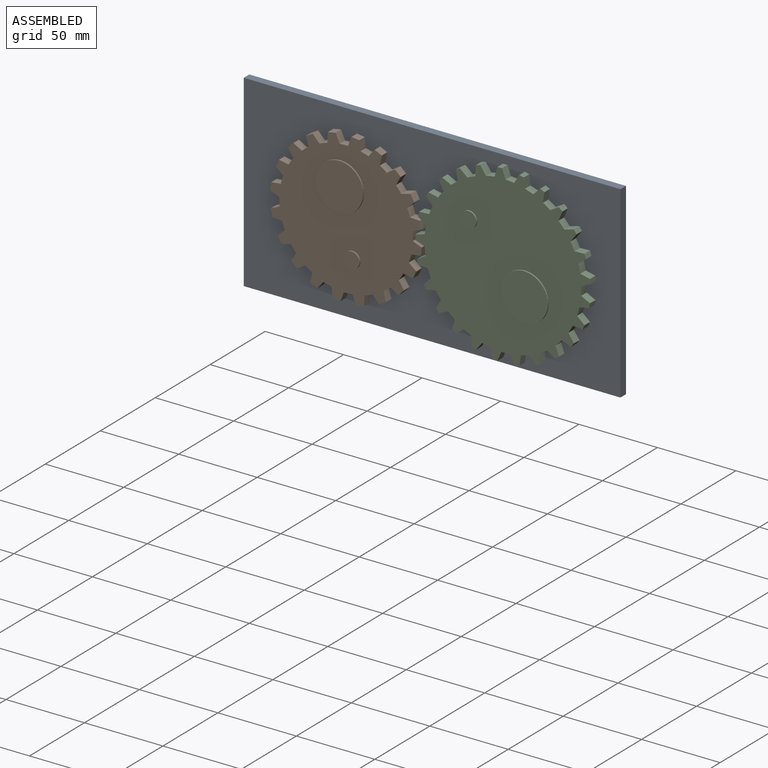
[diagram: assembled view]
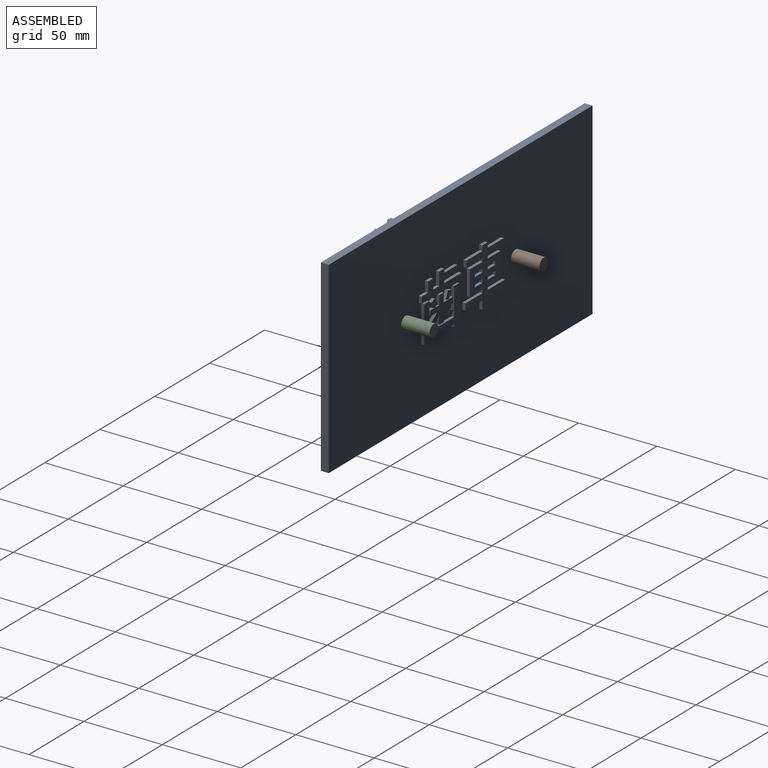
[diagram: assembled view, second angle]
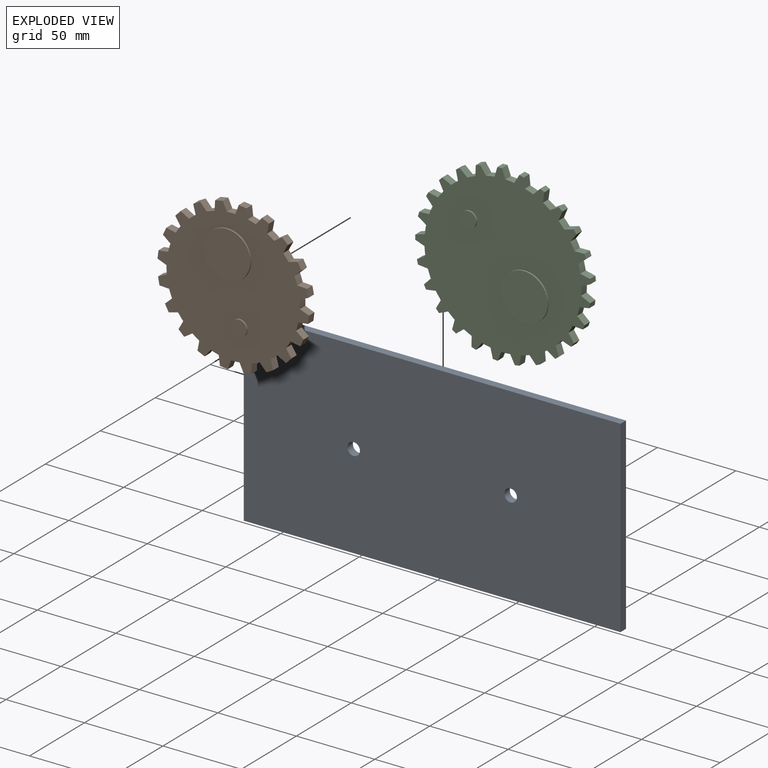
[diagram: exploded view]
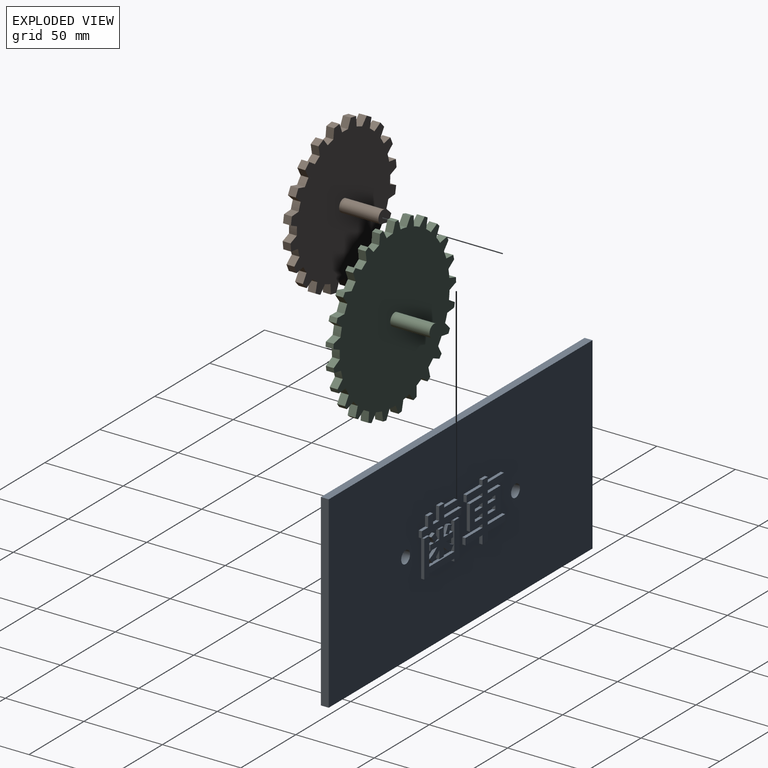
[diagram: exploded view, second angle]
ASSEMBLY  parts=3 mates=2
PART A: 116 faces, bbox 240x7x120 mm
  f0: plane 240x120mm, normal (0,1,0), area 27099.5mm2, adj f2,f3,f4,f5,f6,f7,f8,f9
  f1: plane 240x120mm, normal (0,-1,0), area 28699.5mm2, adj f2,f3,f4,f5,f6,f7
  f2: plane 120x5mm, normal (1,0,0), area 600mm2, adj f0,f1,f3,f5
  f3: plane 240x5mm, normal (0,0,1), area 1200mm2, adj f0,f1,f2,f4
  f4: plane 120x5mm, normal (-1,0,0), area 600mm2, adj f0,f1,f3,f5
  f5: plane 240x5mm, normal (0,0,-1), area 1200mm2, adj f0,f1,f2,f4
  f6: cylinder r=4mm len=8mm, axis (0,-1,0), area 125.7mm2, adj f0,f1
  f7: cylinder r=4mm len=8mm, axis (0,-1,0), area 125.7mm2, adj f0,f1
  f8: plane 17.81x2mm, normal (1,0,0), area 35.6mm2, adj f0,f9,f19,f20
  f9: plane 22.78x2mm, normal (0,0,1), area 45.6mm2, adj f0,f8,f10,f20
  f10: plane 17.81x2mm, normal (-1,0,0), area 35.6mm2, adj f0,f9,f11,f20
  f11: plane 4.49x2mm, normal (0,0,1), area 9mm2, adj f0,f10,f12,f20
  f12: plane 23.49x2mm, normal (1,0,0), area 47mm2, adj f0,f11,f13,f20
  f13: plane 4.49x2mm, normal (0,0,-1), area 9mm2, adj f0,f12,f14,f20
  f14: plane 2x1.63mm, normal (-1,0,0), area 3.3mm2, adj f0,f13,f15,f20
  f15: plane 22.78x2mm, normal (0,0,-1), area 45.6mm2, adj f0,f14,f16,f20
  f16: plane 2x1.63mm, normal (1,0,0), area 3.3mm2, adj f0,f15,f17,f20
  f17: plane 4.61x2mm, normal (0,0,-1), area 9.2mm2, adj f0,f16,f18,f20
  f18: plane 23.49x2mm, normal (-1,0,0), area 47mm2, adj f0,f17,f19,f20
  f19: plane 4.61x2mm, normal (0,0,1), area 9.2mm2, adj f0,f8,f18,f20
  f20: plane 31.88x23.49mm, normal (0,1,0), area 306.1mm2, adj f8,f9,f10,f11,f12,f13,f14,f15
  f21: plane 5.33x2mm, normal (1,0,0), area 10.7mm2, adj f0,f22,f48,f49
  f22: plane 4.01x2mm, normal (0,0,-1), area 8mm2, adj f0,f21,f23,f49
  f23: plane 5.33x2mm, normal (-1,0,0), area 10.7mm2, adj f0,f22,f24,f49
  f24: extruded ~6.44x4.85mm, area 16.2mm2, adj f0,f23,f25,f49
  f25: extruded ~3.06x2.62mm, area 8.1mm2, adj f0,f24,f26,f49
  f26: extruded ~6.96x4.33mm, area 16.5mm2, adj f0,f25,f27,f49
  f27: plane 6.44x2mm, normal (0,0,-1), area 12.9mm2, adj f0,f26,f28,f49
  f28: plane 3.42x2mm, normal (-1,0,0), area 6.8mm2, adj f0,f27,f29,f49
  f29: plane 3.89x2mm, normal (0,0,1), area 7.8mm2, adj f0,f28,f30,f49
  f30: extruded ~4.37x2.98mm, area 10.6mm2, adj f0,f29,f31,f49
  f31: plane 3.74x2mm, normal (-0.29,0,0.96), area 7.8mm2, adj f0,f30,f32,f49
  f32: extruded ~4.49x2.26mm, area 10.1mm2, adj f0,f31,f33,f49
  f33: plane 2.86x2mm, normal (0.34,0,-0.94), area 6.1mm2, adj f0,f32,f34,f49
  f34: plane 4.49x2mm, normal (0,0,1), area 9mm2, adj f0,f33,f35,f49
  f35: plane 5.8x2mm, normal (-1,0,0), area 11.6mm2, adj f0,f34,f36,f49
  f36: plane 4.01x2mm, normal (0,0,1), area 8mm2, adj f0,f35,f37,f49
  f37: plane 5.8x2mm, normal (1,0,0), area 11.6mm2, adj f0,f36,f38,f49
  f38: plane 4.06x2mm, normal (0,0,1), area 8.1mm2, adj f0,f37,f39,f49
  f39: plane 2.58x2mm, normal (-0.4,0,-0.92), area 5.6mm2, adj f0,f38,f40,f49
  f40: extruded ~4.21x2.62mm, area 10mm2, adj f0,f39,f41,f49
  f41: plane 3.18x2mm, normal (0.36,0,0.93), area 6.8mm2, adj f0,f40,f42,f49
  f42: extruded ~4.09x2.39mm, area 9.5mm2, adj f0,f41,f43,f49
  f43: plane 3.18x2mm, normal (0,0,1), area 6.4mm2, adj f0,f42,f44,f49
  f44: plane 3.42x2mm, normal (1,0,0), area 6.8mm2, adj f0,f43,f45,f49
  f45: plane 6.12x2mm, normal (0,0,-1), area 12.2mm2, adj f0,f44,f46,f49
  f46: extruded ~7.19x4.49mm, area 17.1mm2, adj f0,f45,f47,f49
  f47: extruded ~3.1x2.62mm, area 8.1mm2, adj f0,f46,f48,f49
  f48: extruded ~6.52x5.05mm, area 16.6mm2, adj f0,f21,f47,f49
  f49: plane 22.22x17.09mm, normal (0,1,0), area 223.9mm2, adj f21,f22,f23,f24,f25,f26,f27,f28
  f50: plane 15.74x2mm, normal (0,0,1), area 31.5mm2, adj f0,f51,f65,f66
  f51: plane 2.19x2mm, normal (-1,0,0), area 4.4mm2, adj f0,f50,f52,f66
  f52: plane 12.04x2mm, normal (0,0,-1), area 24.1mm2, adj f0,f51,f53,f66
  f53: plane 3.73x2mm, normal (-1,0,0), area 7.5mm2, adj f0,f52,f54,f66
  f54: plane 12.04x2mm, normal (0,0,1), area 24.1mm2, adj f0,f53,f55,f66
  f55: plane 2.5x2mm, normal (-1,0,0), area 5mm2, adj f0,f54,f56,f66
  f56: plane 4.65x2mm, normal (0,0,1), area 9.3mm2, adj f0,f55,f57,f66
  f57: plane 8.42x2mm, normal (1,0,0), area 16.8mm2, adj f0,f56,f58,f66
  f58: plane 5.48x2mm, normal (0,0,1), area 11mm2, adj f0,f57,f59,f66
  f59: plane 6.48x2mm, normal (-1,0,0), area 13mm2, adj f0,f58,f60,f66
  f60: plane 4.49x2mm, normal (0,0,1), area 9mm2, adj f0,f59,f61,f66
  f61: plane 6.48x2mm, normal (1,0,0), area 13mm2, adj f0,f60,f62,f66
  f62: plane 5.73x2mm, normal (0,0,1), area 11.5mm2, adj f0,f61,f63,f66
  f63: plane 4.14x2mm, normal (1,0,0), area 8.3mm2, adj f0,f62,f64,f66
  f64: plane 36.09x2mm, normal (0,0,-1), area 72.2mm2, adj f0,f63,f65,f66
  f65: plane 4.14x2mm, normal (-1,0,0), area 8.3mm2, adj f0,f50,f64,f66
  f66: plane 36.09x12.56mm, normal (0,1,0), area 262.5mm2, adj f50,f51,f52,f53,f54,f55,f56,f57
  f67: plane 6.92x2mm, normal (0,0,1), area 13.8mm2, adj f68,f110,f111,f112
  f68: plane 2.43x2mm, normal (-1,0,0), area 4.9mm2, adj f67,f69,f111,f112
  f69: plane 6.92x2mm, normal (0,0,-1), area 13.8mm2, adj f68,f110,f111,f112
  f70: plane 2.43x2mm, normal (-1,0,0), area 4.9mm2, adj f71,f106,f111,f115
  f71: plane 6.92x2mm, normal (0,0,-1), area 13.8mm2, adj f70,f72,f111,f115
  f72: plane 2.43x2mm, normal (1,0,0), area 4.9mm2, adj f71,f106,f111,f115
  f73: plane 6.96x2mm, normal (0,0,-1), area 13.9mm2, adj f74,f107,f111,f114
  f74: plane 2.43x2mm, normal (1,0,0), area 4.9mm2, adj f73,f75,f111,f114
  f75: plane 6.96x2mm, normal (0,0,1), area 13.9mm2, adj f74,f107,f111,f114
  f76: plane 2.43x2mm, normal (1,0,0), area 4.9mm2, adj f77,f108,f111,f113
  f77: plane 6.96x2mm, normal (0,0,1), area 13.9mm2, adj f76,f78,f111,f113
  f78: plane 2.43x2mm, normal (-1,0,0), area 4.9mm2, adj f77,f108,f111,f113
  f79: plane 4.25x2mm, normal (-1,0,0), area 8.5mm2, adj f0,f80,f109,f111
  f80: plane 15.86x2mm, normal (0,0,1), area 31.7mm2, adj f0,f79,f81,f111
  f81: plane 2.14x2mm, normal (-1,0,0), area 4.3mm2, adj f0,f80,f82,f111
  f82: plane 11.73x2mm, normal (0,0,-1), area 23.5mm2, adj f0,f81,f83,f111
  f83: plane 15.94x2mm, normal (-1,0,0), area 31.9mm2, adj f0,f82,f84,f111
  f84: plane 11.73x2mm, normal (0,0,1), area 23.5mm2, adj f0,f83,f85,f111
  f85: plane 2x1.91mm, normal (-1,0,0), area 3.8mm2, adj f0,f84,f86,f111
  f86: plane 14.71x2mm, normal (0,0,-1), area 29.4mm2, adj f0,f85,f87,f111
  f87: plane 4.29x2mm, normal (-1,0,0), area 8.6mm2, adj f0,f86,f88,f111
  f88: plane 14.71x2mm, normal (0,0,1), area 29.4mm2, adj f0,f87,f89,f111
  f89: plane 3.22x2mm, normal (-1,0,0), area 6.4mm2, adj f0,f88,f90,f111
  f90: plane 4.85x2mm, normal (0,0,1), area 9.7mm2, adj f0,f89,f91,f111
  f91: plane 3.22x2mm, normal (1,0,0), area 6.4mm2, adj f0,f90,f92,f111
  f92: plane 14.43x2mm, normal (0,0,1), area 28.9mm2, adj f0,f91,f93,f111
  f93: plane 4.29x2mm, normal (1,0,0), area 8.6mm2, adj f0,f92,f94,f111
  f94: plane 14.43x2mm, normal (0,0,-1), area 28.9mm2, adj f0,f93,f95,f111
  f95: plane 2x1.91mm, normal (1,0,0), area 3.8mm2, adj f0,f94,f96,f111
  f96: plane 11.45x2mm, normal (0,0,1), area 22.9mm2, adj f0,f95,f97,f111
  f97: plane 15.94x2mm, normal (1,0,0), area 31.9mm2, adj f0,f96,f98,f111
  f98: plane 11.45x2mm, normal (0,0,-1), area 22.9mm2, adj f0,f97,f99,f111
  f99: plane 2.14x2mm, normal (1,0,0), area 4.3mm2, adj f0,f98,f100,f111
  f100: plane 15.38x2mm, normal (0,0,1), area 30.8mm2, adj f0,f99,f101,f111
  f101: plane 4.25x2mm, normal (1,0,0), area 8.5mm2, adj f0,f100,f102,f111
  f102: plane 15.38x2mm, normal (0,0,-1), area 30.8mm2, adj f0,f101,f103,f111
  f103: plane 5.37x2mm, normal (1,0,0), area 10.7mm2, adj f0,f102,f104,f111
  f104: plane 4.85x2mm, normal (0,0,-1), area 9.7mm2, adj f0,f103,f105,f111
  f105: plane 5.37x2mm, normal (-1,0,0), area 10.7mm2, adj f0,f104,f109,f111
  f106: plane 6.92x2mm, normal (0,0,1), area 13.8mm2, adj f70,f72,f111,f115
  f107: plane 2.43x2mm, normal (-1,0,0), area 4.9mm2, adj f73,f75,f111,f114
  f108: plane 6.96x2mm, normal (0,0,-1), area 13.9mm2, adj f76,f78,f111,f113
  f109: plane 15.86x2mm, normal (0,0,-1), area 31.7mm2, adj f0,f79,f105,f111
  f110: plane 2.43x2mm, normal (1,0,0), area 4.9mm2, adj f67,f69,f111,f112
  f111: plane 37.12x36.09mm, normal (0,1,0), area 740mm2, adj f67,f68,f69,f70,f71,f72,f73,f74
  f112: plane 6.92x2.43mm, normal (0,1,0), area 16.8mm2, adj f67,f68,f69,f110
  f113: plane 6.96x2.43mm, normal (0,1,0), area 16.9mm2, adj f76,f77,f78,f108
  f114: plane 6.96x2.43mm, normal (0,1,0), area 16.9mm2, adj f73,f74,f75,f107
  f115: plane 6.92x2.43mm, normal (0,1,0), area 16.8mm2, adj f70,f71,f72,f106
PART B: 88 faces, bbox 96.6x31x96.6 mm
  f0: cylinder r=42.5mm len=5mm, axis (0,1,0), area 26.7mm2, adj f25,f26,f74,f77
  f1: cylinder r=42.5mm len=5mm, axis (0,1,0), area 26.7mm2, adj f25,f26,f76,f80
  f2: cylinder r=42.5mm len=5mm, axis (0,1,0), area 26.7mm2, adj f25,f26,f79,f81
  f3: cylinder r=42.5mm len=5.27mm, axis (0,1,0), area 26.7mm2, adj f25,f26,f29,f82
  f4: cylinder r=42.5mm len=5.27mm, axis (0,1,0), area 26.7mm2, adj f25,f26,f28,f32
  f5: cylinder r=42.5mm len=5mm, axis (0,1,0), area 26.7mm2, adj f25,f26,f31,f35
  f6: cylinder r=42.5mm len=5mm, axis (0,1,0), area 26.7mm2, adj f25,f26,f34,f38
  f7: cylinder r=42.5mm len=5mm, axis (0,1,0), area 26.7mm2, adj f25,f26,f37,f41
  f8: cylinder r=42.5mm len=5.27mm, axis (0,1,0), area 26.7mm2, adj f25,f26,f40,f44
  f9: cylinder r=42.5mm len=5.27mm, axis (0,1,0), area 26.7mm2, adj f25,f26,f43,f47
  f10: cylinder r=42.5mm len=5mm, axis (0,1,0), area 26.7mm2, adj f25,f26,f46,f50
  f11: cylinder r=42.5mm len=5mm, axis (0,1,0), area 26.7mm2, adj f25,f26,f49,f53
  f12: cylinder r=42.5mm len=5mm, axis (0,1,0), area 26.7mm2, adj f25,f26,f52,f56
  f13: cylinder r=42.5mm len=5.27mm, axis (0,1,0), area 26.7mm2, adj f25,f26,f55,f59
  f14: cylinder r=42.5mm len=5.27mm, axis (0,1,0), area 26.7mm2, adj f25,f26,f58,f62
  f15: cylinder r=42.5mm len=5mm, axis (0,1,0), area 26.7mm2, adj f25,f26,f61,f65
  f16: cylinder r=42.5mm len=5mm, axis (0,1,0), area 26.7mm2, adj f25,f26,f64,f68
  f17: cylinder r=42.5mm len=5mm, axis (0,1,0), area 26.7mm2, adj f25,f26,f67,f71
  f18: cylinder r=42.5mm len=5.27mm, axis (0,1,0), area 26.7mm2, adj f21,f25,f26,f70
  f19: cylinder r=4mm len=25mm, axis (0,-1,0), area 628.3mm2, adj f20,f26
  f20: plane 8x8mm, normal (0,1,0), area 50.3mm2, adj f19
  f21: plane 6x5mm, normal (0.24,0,0.97), area 30.9mm2, adj f18,f24,f25,f26
  f22: cylinder r=42.5mm len=5.27mm, axis (0,1,0), area 26.7mm2, adj f23,f25,f26,f73
  f23: plane 6x5mm, normal (0.24,0,-0.97), area 30.9mm2, adj f22,f24,f25,f26
  f24: plane 5x5mm, normal (1,0,0), area 25mm2, adj f21,f23,f25,f26
  f25: plane 96.62x96.62mm, normal (0,-1,0), area 5649mm2, adj f0,f1,f2,f3,f4,f5,f6,f7
  f26: plane 96.62x96.62mm, normal (0,1,0), area 6384.1mm2, adj f0,f1,f2,f3,f4,f5,f6,f7
  f27: plane 5x5mm, normal (0,0,-1), area 25mm2, adj f25,f26,f28,f29
  f28: plane 6x5mm, normal (-0.97,0,-0.24), area 30.9mm2, adj f4,f25,f26,f27
  f29: plane 6x5mm, normal (0.97,0,-0.24), area 30.9mm2, adj f3,f25,f26,f27
  f30: plane 5x4.76mm, normal (-0.31,0,-0.95), area 25mm2, adj f25,f26,f31,f32
  f31: plane 6.17x5mm, normal (-1,0,0.07), area 30.9mm2, adj f5,f25,f26,f30
  f32: plane 5.24x5mm, normal (0.85,0,-0.53), area 30.9mm2, adj f4,f25,f26,f30
  f33: plane 5x4.05mm, normal (-0.59,0,-0.81), area 25mm2, adj f25,f26,f34,f35
  f34: plane 5.74x5mm, normal (-0.93,0,0.37), area 30.9mm2, adj f6,f25,f26,f33
  f35: plane 5x4.74mm, normal (0.64,0,-0.77), area 30.9mm2, adj f5,f25,f26,f33
  f36: plane 5x4.05mm, normal (-0.81,0,-0.59), area 25mm2, adj f25,f26,f37,f38
  f37: plane 5x4.74mm, normal (-0.77,0,0.64), area 30.9mm2, adj f7,f25,f26,f36
  f38: plane 5.74x5mm, normal (0.37,0,-0.93), area 30.9mm2, adj f6,f25,f26,f36
  f39: plane 5x4.76mm, normal (-0.95,0,-0.31), area 25mm2, adj f25,f26,f40,f41
  f40: plane 5.24x5mm, normal (-0.53,0,0.85), area 30.9mm2, adj f8,f25,f26,f39
  f41: plane 6.17x5mm, normal (0.07,0,-1), area 30.9mm2, adj f7,f25,f26,f39
  f42: plane 5x5mm, normal (-1,0,0), area 25mm2, adj f25,f26,f43,f44
  f43: plane 6x5mm, normal (-0.24,0,0.97), area 30.9mm2, adj f9,f25,f26,f42
  f44: plane 6x5mm, normal (-0.24,0,-0.97), area 30.9mm2, adj f8,f25,f26,f42
  f45: plane 5x4.76mm, normal (-0.95,0,0.31), area 25mm2, adj f25,f26,f46,f47
  f46: plane 6.17x5mm, normal (0.07,0,1), area 30.9mm2, adj f10,f25,f26,f45
  f47: plane 5.24x5mm, normal (-0.53,0,-0.85), area 30.9mm2, adj f9,f25,f26,f45
  f48: plane 5x4.05mm, normal (-0.81,0,0.59), area 25mm2, adj f25,f26,f49,f50
  f49: plane 5.74x5mm, normal (0.37,0,0.93), area 30.9mm2, adj f11,f25,f26,f48
  f50: plane 5x4.74mm, normal (-0.77,0,-0.64), area 30.9mm2, adj f10,f25,f26,f48
  f51: plane 5x4.05mm, normal (-0.59,0,0.81), area 25mm2, adj f25,f26,f52,f53
  f52: plane 5x4.74mm, normal (0.64,0,0.77), area 30.9mm2, adj f12,f25,f26,f51
  f53: plane 5.74x5mm, normal (-0.93,0,-0.37), area 30.9mm2, adj f11,f25,f26,f51
  f54: plane 5x4.76mm, normal (-0.31,0,0.95), area 25mm2, adj f25,f26,f55,f56
  f55: plane 5.24x5mm, normal (0.85,0,0.53), area 30.9mm2, adj f13,f25,f26,f54
  f56: plane 6.17x5mm, normal (-1,0,-0.07), area 30.9mm2, adj f12,f25,f26,f54
  f57: plane 5x5mm, normal (0,0,1), area 25mm2, adj f25,f26,f58,f59
  f58: plane 6x5mm, normal (0.97,0,0.24), area 30.9mm2, adj f14,f25,f26,f57
  f59: plane 6x5mm, normal (-0.97,0,0.24), area 30.9mm2, adj f13,f25,f26,f57
  f60: plane 5x4.76mm, normal (0.31,0,0.95), area 25mm2, adj f25,f26,f61,f62
  f61: plane 6.17x5mm, normal (1,0,-0.07), area 30.9mm2, adj f15,f25,f26,f60
  f62: plane 5.24x5mm, normal (-0.85,0,0.53), area 30.9mm2, adj f14,f25,f26,f60
  f63: plane 5x4.05mm, normal (0.59,0,0.81), area 25mm2, adj f25,f26,f64,f65
  f64: plane 5.74x5mm, normal (0.93,0,-0.37), area 30.9mm2, adj f16,f25,f26,f63
  f65: plane 5x4.74mm, normal (-0.64,0,0.77), area 30.9mm2, adj f15,f25,f26,f63
  f66: plane 5x4.05mm, normal (0.81,0,0.59), area 25mm2, adj f25,f26,f67,f68
  f67: plane 5x4.74mm, normal (0.77,0,-0.64), area 30.9mm2, adj f17,f25,f26,f66
  f68: plane 5.74x5mm, normal (-0.37,0,0.93), area 30.9mm2, adj f16,f25,f26,f66
  f69: plane 5x4.76mm, normal (0.95,0,0.31), area 25mm2, adj f25,f26,f70,f71
  f70: plane 5.24x5mm, normal (0.53,0,-0.85), area 30.9mm2, adj f18,f25,f26,f69
  f71: plane 6.17x5mm, normal (-0.07,0,1), area 30.9mm2, adj f17,f25,f26,f69
  f72: plane 5x4.76mm, normal (0.95,0,-0.31), area 25mm2, adj f25,f26,f73,f74
  f73: plane 5.24x5mm, normal (0.53,0,0.85), area 30.9mm2, adj f22,f25,f26,f72
  f74: plane 6.17x5mm, normal (-0.07,0,-1), area 30.9mm2, adj f0,f25,f26,f72
  f75: plane 5x4.05mm, normal (0.81,0,-0.59), area 25mm2, adj f25,f26,f76,f77
  f76: plane 5.74x5mm, normal (-0.37,0,-0.93), area 30.9mm2, adj f1,f25,f26,f75
  f77: plane 5x4.74mm, normal (0.77,0,0.64), area 30.9mm2, adj f0,f25,f26,f75
  f78: plane 5x4.05mm, normal (0.59,0,-0.81), area 25mm2, adj f25,f26,f79,f80
  f79: plane 5x4.74mm, normal (-0.64,0,-0.77), area 30.9mm2, adj f2,f25,f26,f78
  f80: plane 5.74x5mm, normal (0.93,0,0.37), area 30.9mm2, adj f1,f25,f26,f78
  f81: plane 6.17x5mm, normal (1,0,0.07), area 30.9mm2, adj f2,f25,f26,f83
  f82: plane 5.24x5mm, normal (-0.85,0,-0.53), area 30.9mm2, adj f3,f25,f26,f83
  f83: plane 5x4.76mm, normal (0.31,0,-0.95), area 25mm2, adj f25,f26,f81,f82
  f84: cylinder r=15mm len=30mm, axis (0,1,0), area 94.2mm2, adj f25,f85
  f85: plane 30x30mm, normal (0,-1,0), area 706.9mm2, adj f84
  f86: cylinder r=5mm len=10mm, axis (0,1,0), area 31.4mm2, adj f25,f87
  f87: plane 10x10mm, normal (0,-1,0), area 78.5mm2, adj f86
PART C: 108 faces, bbox 111.5x31x111.7 mm
  f0: cylinder r=4mm len=25mm, axis (0,-1,0), area 628.3mm2, adj f1,f103
  f1: plane 8x8mm, normal (0,1,0), area 50.3mm2, adj f0
  f2: plane 111.72x111.5mm, normal (0,-1,0), area 7802.7mm2, adj f3,f4,f5,f6,f7,f8,f9,f10
  f3: plane 6.33x5mm, normal (1,0,-0.01), area 31.6mm2, adj f2,f4,f102,f103
  f4: cylinder r=50mm len=5.03mm, axis (0,1,0), area 27.8mm2, adj f2,f3,f5,f103
  f5: plane 5x4.91mm, normal (-0.63,0,-0.78), area 31.6mm2, adj f2,f4,f6,f103
  f6: plane 5x2.52mm, normal (0.54,0,-0.84), area 14.9mm2, adj f2,f5,f7,f103
  f7: plane 6.14x5mm, normal (0.97,0,0.24), area 31.6mm2, adj f2,f6,f8,f103
  f8: cylinder r=50mm len=5mm, axis (0,1,0), area 27.8mm2, adj f2,f7,f9,f103
  f9: plane 5.75x5mm, normal (-0.42,0,-0.91), area 31.6mm2, adj f2,f8,f10,f103
  f10: plane 5x2.17mm, normal (0.73,0,-0.68), area 14.9mm2, adj f2,f9,f11,f103
  f11: plane 5.57x5mm, normal (0.88,0,0.47), area 31.6mm2, adj f2,f10,f12,f103
  f12: cylinder r=50mm len=5mm, axis (0,1,0), area 27.8mm2, adj f2,f11,f13,f103
  f13: plane 6.23x5mm, normal (-0.18,0,-0.98), area 31.6mm2, adj f2,f12,f14,f103
  f14: plane 5x2.61mm, normal (0.88,0,-0.48), area 14.9mm2, adj f2,f13,f15,f103
  f15: plane 5x4.65mm, normal (0.74,0,0.68), area 31.6mm2, adj f2,f14,f16,f103
  f16: cylinder r=50mm len=5.17mm, axis (0,1,0), area 27.8mm2, adj f2,f15,f17,f103
  f17: plane 6.31x5mm, normal (0.07,0,-1), area 31.6mm2, adj f2,f16,f18,f103
  f18: plane 5x2.89mm, normal (0.97,0,-0.25), area 14.9mm2, adj f2,f17,f19,f103
  f19: plane 5.31x5mm, normal (0.54,0,0.84), area 31.6mm2, adj f2,f18,f20,f103
  f20: cylinder r=50mm len=5.51mm, axis (0,1,0), area 27.8mm2, adj f2,f19,f21,f103
  f21: plane 6x5mm, normal (0.32,0,-0.95), area 31.6mm2, adj f2,f20,f22,f103
  f22: plane 5x2.98mm, normal (1,0,0), area 14.9mm2, adj f2,f21,f23,f103
  f23: plane 6x5mm, normal (0.32,0,0.95), area 31.6mm2, adj f2,f22,f24,f103
  f24: cylinder r=50mm len=5.51mm, axis (0,1,0), area 27.8mm2, adj f2,f23,f25,f103
  f25: plane 5.31x5mm, normal (0.54,0,-0.84), area 31.6mm2, adj f2,f24,f26,f103
  f26: plane 5x2.89mm, normal (0.97,0,0.25), area 14.9mm2, adj f2,f25,f27,f103
  f27: plane 6.31x5mm, normal (0.07,0,1), area 31.6mm2, adj f2,f26,f28,f103
  f28: cylinder r=50mm len=5.17mm, axis (0,1,0), area 27.8mm2, adj f2,f27,f29,f103
  f29: plane 5x4.65mm, normal (0.74,0,-0.68), area 31.6mm2, adj f2,f28,f30,f103
  f30: plane 5x2.61mm, normal (0.88,0,0.48), area 14.9mm2, adj f2,f29,f31,f103
  f31: plane 6.23x5mm, normal (-0.18,0,0.98), area 31.6mm2, adj f2,f30,f32,f103
  f32: cylinder r=50mm len=5mm, axis (0,1,0), area 27.8mm2, adj f2,f31,f33,f103
  f33: plane 5.57x5mm, normal (0.88,0,-0.47), area 31.6mm2, adj f2,f32,f34,f103
  f34: plane 5x2.17mm, normal (0.73,0,0.68), area 14.9mm2, adj f2,f33,f35,f103
  f35: plane 5.75x5mm, normal (-0.42,0,0.91), area 31.6mm2, adj f2,f34,f36,f103
  f36: cylinder r=50mm len=5mm, axis (0,1,0), area 27.8mm2, adj f2,f35,f37,f103
  f37: plane 6.14x5mm, normal (0.97,0,-0.24), area 31.6mm2, adj f2,f36,f38,f103
  f38: plane 5x2.52mm, normal (0.54,0,0.84), area 14.9mm2, adj f2,f37,f39,f103
  f39: plane 5x4.91mm, normal (-0.63,0,0.78), area 31.6mm2, adj f2,f38,f40,f103
  f40: cylinder r=50mm len=5.03mm, axis (0,1,0), area 27.8mm2, adj f2,f39,f41,f103
  f41: plane 6.33x5mm, normal (1,0,0.01), area 31.6mm2, adj f2,f40,f42,f103
  f42: plane 5x2.83mm, normal (0.31,0,0.95), area 14.9mm2, adj f2,f41,f43,f103
  f43: plane 5.09x5mm, normal (-0.8,0,0.6), area 31.6mm2, adj f2,f42,f44,f103
  f44: cylinder r=50mm len=5.46mm, axis (0,1,0), area 27.8mm2, adj f2,f43,f45,f103
  f45: plane 6.11x5mm, normal (0.97,0,0.26), area 31.6mm2, adj f2,f44,f46,f103
  f46: plane 5x2.97mm, normal (0.06,0,1), area 14.9mm2, adj f2,f45,f47,f103
  f47: plane 5.86x5mm, normal (-0.93,0,0.38), area 31.6mm2, adj f2,f46,f48,f103
  f48: cylinder r=50mm len=5.55mm, axis (0,1,0), area 27.8mm2, adj f2,f47,f49,f103
  f49: plane 5.52x5mm, normal (0.87,0,0.49), area 31.6mm2, adj f2,f48,f50,f103
  f50: plane 5x2.93mm, normal (-0.19,0,0.98), area 14.9mm2, adj f2,f49,f51,f103
  f51: plane 6.27x5mm, normal (-0.99,0,0.13), area 31.6mm2, adj f2,f50,f52,f103
  f52: cylinder r=50mm len=5.29mm, axis (0,1,0), area 27.8mm2, adj f2,f51,f53,f103
  f53: plane 5x4.57mm, normal (0.72,0,0.69), area 31.6mm2, adj f2,f52,f54,f103
  f54: plane 5x2.7mm, normal (-0.43,0,0.9), area 14.9mm2, adj f2,f53,f55,f103
  f55: plane 6.29x5mm, normal (-0.99,0,-0.12), area 31.6mm2, adj f2,f54,f56,f103
  f56: cylinder r=50mm len=5mm, axis (0,1,0), area 27.8mm2, adj f2,f55,f57,f103
  f57: plane 5.37x5mm, normal (0.53,0,0.85), area 31.6mm2, adj f2,f56,f58,f103
  f58: plane 5x2.3mm, normal (-0.64,0,0.77), area 14.9mm2, adj f2,f57,f59,f103
  f59: plane 5.9x5mm, normal (-0.93,0,-0.36), area 31.6mm2, adj f2,f58,f60,f103
  f60: cylinder r=50mm len=5mm, axis (0,1,0), area 27.8mm2, adj f2,f59,f61,f103
  f61: plane 6.04x5mm, normal (0.3,0,0.95), area 31.6mm2, adj f2,f60,f62,f103
  f62: plane 5x2.41mm, normal (-0.81,0,0.59), area 14.9mm2, adj f2,f61,f63,f103
  f63: plane 5.15x5mm, normal (-0.81,0,-0.58), area 31.6mm2, adj f2,f62,f64,f103
  f64: cylinder r=50mm len=5mm, axis (0,1,0), area 27.8mm2, adj f2,f63,f65,f103
  f65: plane 6.32x5mm, normal (0.05,0,1), area 31.6mm2, adj f2,f64,f66,f103
  f66: plane 5x2.77mm, normal (-0.93,0,0.37), area 14.9mm2, adj f2,f65,f67,f103
  f67: plane 5x4.84mm, normal (-0.64,0,-0.76), area 31.6mm2, adj f2,f66,f68,f103
  f68: cylinder r=50mm len=5.38mm, axis (0,1,0), area 27.8mm2, adj f2,f67,f69,f103
  f69: plane 6.2x5mm, normal (-0.2,0,0.98), area 31.6mm2, adj f2,f68,f70,f103
  f70: plane 5x2.96mm, normal (-0.99,0,0.13), area 14.9mm2, adj f2,f69,f71,f103
  f71: plane 5.7x5mm, normal (-0.43,0,-0.9), area 31.6mm2, adj f2,f70,f72,f103
  f72: cylinder r=50mm len=5.56mm, axis (0,1,0), area 27.8mm2, adj f2,f71,f73,f103
  f73: plane 5.7x5mm, normal (-0.43,0,0.9), area 31.6mm2, adj f2,f72,f74,f103
  f74: plane 5x2.96mm, normal (-0.99,0,-0.13), area 14.9mm2, adj f2,f73,f75,f103
  f75: plane 6.2x5mm, normal (-0.2,0,-0.98), area 31.6mm2, adj f2,f74,f76,f103
  f76: cylinder r=50mm len=5.38mm, axis (0,1,0), area 27.8mm2, adj f2,f75,f77,f103
  f77: plane 5x4.84mm, normal (-0.64,0,0.76), area 31.6mm2, adj f2,f76,f78,f103
  f78: plane 5x2.77mm, normal (-0.93,0,-0.37), area 14.9mm2, adj f2,f77,f79,f103
  f79: plane 6.32x5mm, normal (0.05,0,-1), area 31.6mm2, adj f2,f78,f80,f103
  f80: cylinder r=50mm len=5mm, axis (0,1,0), area 27.8mm2, adj f2,f79,f81,f103
  f81: plane 5.15x5mm, normal (-0.81,0,0.58), area 31.6mm2, adj f2,f80,f82,f103
  f82: plane 5x2.41mm, normal (-0.81,0,-0.59), area 14.9mm2, adj f2,f81,f83,f103
  f83: plane 6.04x5mm, normal (0.3,0,-0.95), area 31.6mm2, adj f2,f82,f84,f103
  f84: cylinder r=50mm len=5mm, axis (0,1,0), area 27.8mm2, adj f2,f83,f85,f103
  f85: plane 5.9x5mm, normal (-0.93,0,0.36), area 31.6mm2, adj f2,f84,f86,f103
  f86: plane 5x2.3mm, normal (-0.64,0,-0.77), area 14.9mm2, adj f2,f85,f87,f103
  f87: plane 5.37x5mm, normal (0.53,0,-0.85), area 31.6mm2, adj f2,f86,f88,f103
  f88: cylinder r=50mm len=5mm, axis (0,1,0), area 27.8mm2, adj f2,f87,f89,f103
  f89: plane 6.29x5mm, normal (-0.99,0,0.12), area 31.6mm2, adj f2,f88,f90,f103
  f90: plane 5x2.7mm, normal (-0.43,0,-0.9), area 14.9mm2, adj f2,f89,f91,f103
  f91: plane 5x4.57mm, normal (0.72,0,-0.69), area 31.6mm2, adj f2,f90,f92,f103
  f92: cylinder r=50mm len=5.29mm, axis (0,1,0), area 27.8mm2, adj f2,f91,f93,f103
  f93: plane 6.27x5mm, normal (-0.99,0,-0.13), area 31.6mm2, adj f2,f92,f94,f103
  f94: plane 5x2.93mm, normal (-0.19,0,-0.98), area 14.9mm2, adj f2,f93,f95,f103
  f95: plane 5.52x5mm, normal (0.87,0,-0.49), area 31.6mm2, adj f2,f94,f96,f103
  f96: cylinder r=50mm len=5.55mm, axis (0,1,0), area 27.8mm2, adj f2,f95,f97,f103
  f97: plane 5.86x5mm, normal (-0.93,0,-0.38), area 31.6mm2, adj f2,f96,f98,f103
  f98: plane 5x2.97mm, normal (0.06,0,-1), area 14.9mm2, adj f2,f97,f99,f103
  f99: plane 6.11x5mm, normal (0.97,0,-0.26), area 31.6mm2, adj f2,f98,f100,f103
  f100: cylinder r=50mm len=5.46mm, axis (0,1,0), area 27.8mm2, adj f2,f99,f101,f103
  f101: plane 5.09x5mm, normal (-0.8,0,-0.6), area 31.6mm2, adj f2,f100,f102,f103
  f102: plane 5x2.83mm, normal (0.31,0,-0.95), area 14.9mm2, adj f2,f3,f101,f103
  f103: plane 111.72x111.5mm, normal (0,1,0), area 8537.8mm2, adj f0,f3,f4,f5,f6,f7,f8,f9
  f104: cylinder r=15mm len=30mm, axis (0,1,0), area 94.2mm2, adj f2,f105
  f105: plane 30x30mm, normal (0,-1,0), area 706.9mm2, adj f104
  f106: cylinder r=5mm len=10mm, axis (0,1,0), area 31.4mm2, adj f2,f107
  f107: plane 10x10mm, normal (0,-1,0), area 78.5mm2, adj f106
PLACE A at identity fixed
PLACE B rot(axis=(0,-1,0),100.9deg) t=(-59.41,-2,49.11)mm
PLACE C rot(axis=(0,-1,0),135.3deg) t=(85.55,-2,-35.16)mm
MATE revolute A.f7 <-> B.f19  axis (0,-1,0) through (-50,-5,0)mm
MATE revolute A.f6 <-> C.f4  axis (0,-1,0) through (50,-5,0)mm
